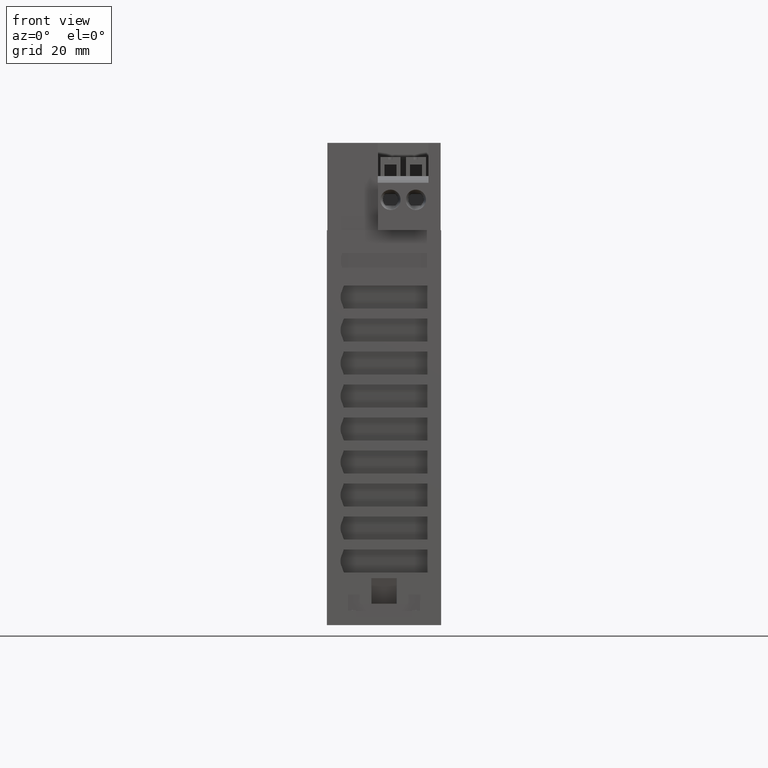
[diagram: clean part render]
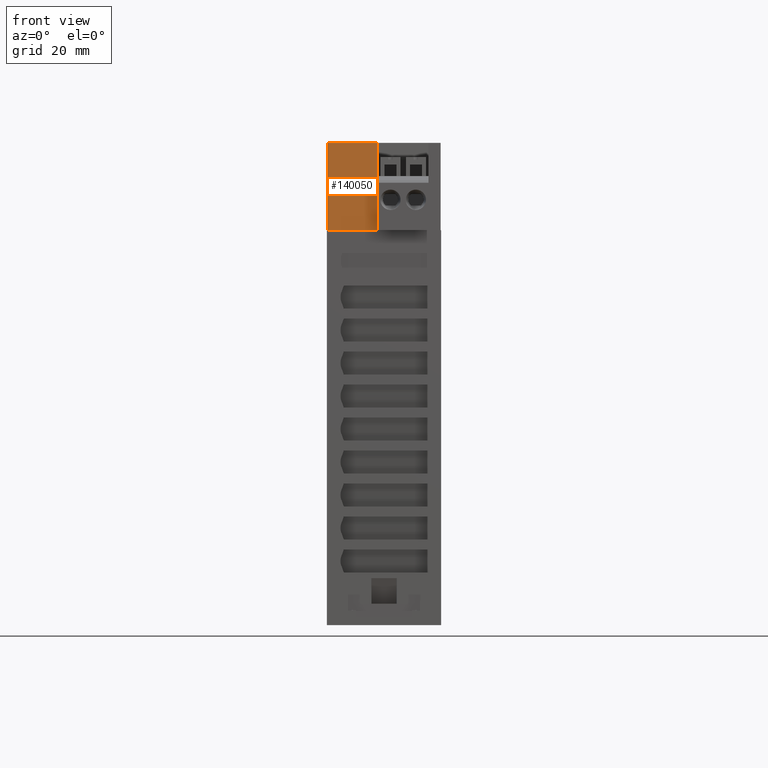
[diagram: same view with one face highlighted and labeled with its STEP entity id]
A machine part, front view. The second image highlights one B-rep face of the part: STEP entity #140050.
In plain terms, the highlighted planar face has unit normal (-0, 1, 0).
Its self-contained STEP definition (entity closure, byte-faithful):
#50440=CARTESIAN_POINT('',(1.22487799997498,71.8,-49.4));
#50450=VERTEX_POINT('',#50440);
#50480=CARTESIAN_POINT('',(1.22487799997515,71.8,-49.4));
#50490=DIRECTION('',(1.38777878078145E-16,1.,0.));
#50500=VECTOR('',#50490,1.);
#50510=LINE('',#50480,#50500);
#50520=CARTESIAN_POINT('',(1.22487799997515,82.4498375098812,-49.4));
#50530=VERTEX_POINT('',#50520);
#50540=EDGE_CURVE('',#50450,#50530,#50510,.T.);
#89570=CARTESIAN_POINT('',(1.22487799997498,71.8,-49.4));
#89580=DIRECTION('',(1.591391524064E-14,1.,-3.15544362088405E-30));
#89590=VECTOR('',#89580,1.);
#89600=LINE('',#89570,#89590);
#89610=CARTESIAN_POINT('',(1.22487799997515,89.,-49.4));
#89620=VERTEX_POINT('',#89610);
#89630=EDGE_CURVE('',#50530,#89620,#89600,.T.);
#134160=CARTESIAN_POINT('',(0.,89.,-49.4));
#134170=DIRECTION('',(1.,0.,-1.38777878078145E-16));
#134180=VECTOR('',#134170,1.);
#134190=LINE('',#134160,#134180);
#134200=CARTESIAN_POINT('',(11.15,89.,-49.4));
#134210=VERTEX_POINT('',#134200);
#134220=EDGE_CURVE('',#89620,#134210,#134190,.T.);
#139620=CARTESIAN_POINT('',(11.15,71.8,-49.4));
#139630=DIRECTION('',(1.38777878078145E-16,1.,0.));
#139640=VECTOR('',#139630,1.);
#139650=LINE('',#139620,#139640);
#139660=CARTESIAN_POINT('',(11.15,71.8,-49.4));
#139670=VERTEX_POINT('',#139660);
#139680=EDGE_CURVE('',#139670,#134210,#139650,.T.);
#139880=CARTESIAN_POINT('',(11.15,71.8,-49.4));
#139890=DIRECTION('',(1.38777878078145E-16,-1.92592994438724E-32,1.));
#139900=DIRECTION('',(-1.,1.38777878078145E-16,1.38777878078145E-16));
#139910=AXIS2_PLACEMENT_3D('',#139880,#139890,#139900);
#139920=PLANE('',#139910);
#139930=ORIENTED_EDGE('',*,*,#89630,.T.);
#139940=ORIENTED_EDGE('',*,*,#50540,.T.);
#139950=CARTESIAN_POINT('',(-7.105427357601E-15,71.8,-49.4));
#139960=DIRECTION('',(1.,-1.38777878078145E-16,-1.38777878078145E-16));
#139970=VECTOR('',#139960,1.);
#139980=LINE('',#139950,#139970);
#139990=EDGE_CURVE('',#50450,#139670,#139980,.T.);
#140000=ORIENTED_EDGE('',*,*,#139990,.F.);
#140010=ORIENTED_EDGE('',*,*,#139680,.F.);
#140020=ORIENTED_EDGE('',*,*,#134220,.T.);
#140030=EDGE_LOOP('',(#140020,#140010,#140000,#139940,#139930));
#140040=FACE_OUTER_BOUND('',#140030,.T.);
#140050=ADVANCED_FACE('',(#140040),#139920,.F.);